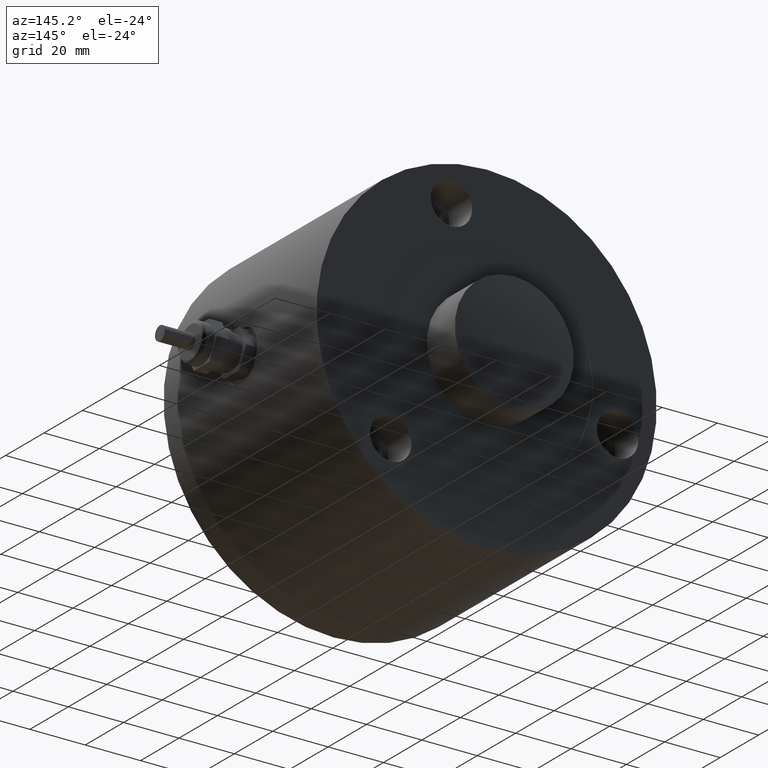
[diagram: clean part render]
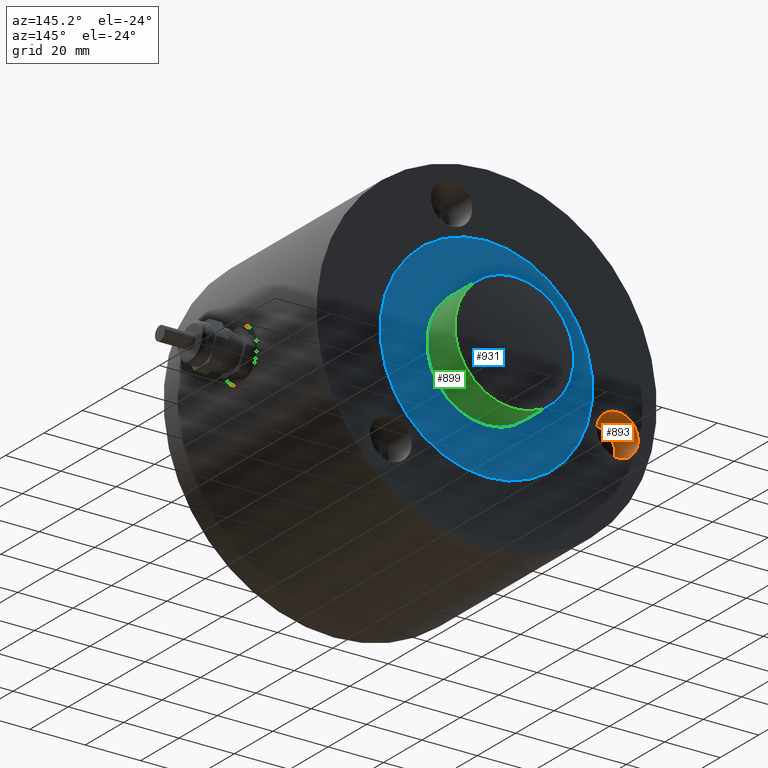
[diagram: same view with three faces highlighted in distinct colors, each labeled with its STEP entity id]
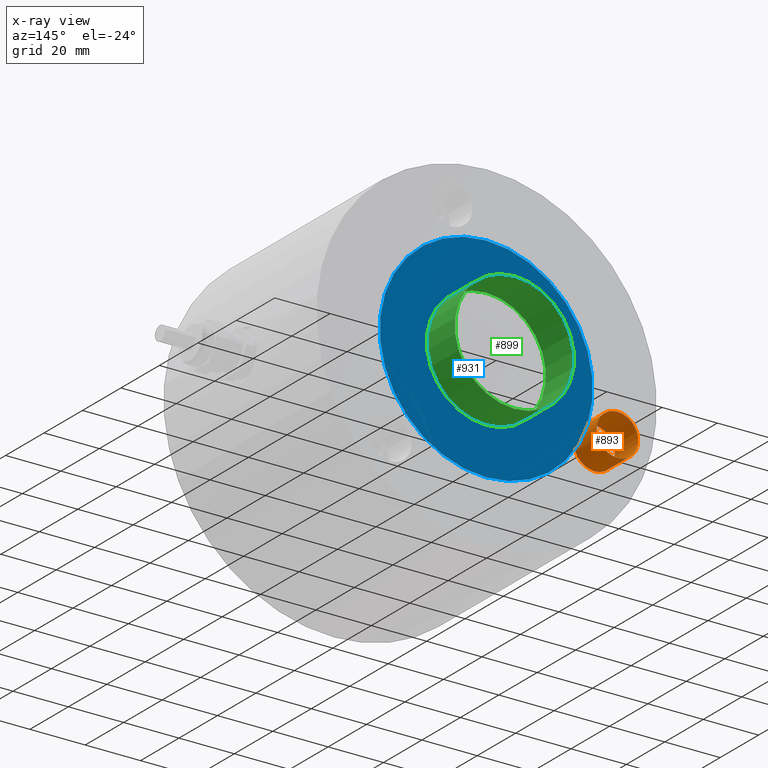
[diagram: x-ray of the same camera — body ghosted, the three highlighted faces saturated]
A machine part, auxiliary view with three faces highlighted in distinct colors.
The next image is the same camera in x-ray (body ghosted, the three faces saturated) — at least one of them is partly hidden behind the body in this view.
Their STEP definitions:

[orange] entity #893 — the highlighted cylindrical surface (bore or boss wall) has radius 7.5 mm, axis along (0, 1, 0).
#77=FACE_OUTER_BOUND('',#127,.T.);
#127=EDGE_LOOP('',(#624,#625,#626,#627,#628,#629));
#193=LINE('',#1451,#245);
#245=VECTOR('',#1117,7.5);
#306=CIRCLE('',#969,7.5);
#307=CIRCLE('',#970,7.5);
#308=CIRCLE('',#971,7.5);
#309=CIRCLE('',#972,7.5);
#383=VERTEX_POINT('',#1446);
#384=VERTEX_POINT('',#1447);
#385=VERTEX_POINT('',#1450);
#386=VERTEX_POINT('',#1452);
#486=EDGE_CURVE('',#383,#384,#306,.T.);
#487=EDGE_CURVE('',#384,#383,#307,.T.);
#488=EDGE_CURVE('',#384,#385,#193,.T.);
#489=EDGE_CURVE('',#385,#386,#308,.T.);
#490=EDGE_CURVE('',#386,#385,#309,.T.);
#624=ORIENTED_EDGE('',*,*,#486,.F.);
#625=ORIENTED_EDGE('',*,*,#487,.F.);
#626=ORIENTED_EDGE('',*,*,#488,.T.);
#627=ORIENTED_EDGE('',*,*,#489,.T.);
#628=ORIENTED_EDGE('',*,*,#490,.T.);
#629=ORIENTED_EDGE('',*,*,#488,.F.);
#877=CYLINDRICAL_SURFACE('',#968,7.5);
#893=ADVANCED_FACE('',(#77),#877,.F.);
#968=AXIS2_PLACEMENT_3D('',#1445,#1111,#1112);
#969=AXIS2_PLACEMENT_3D('',#1448,#1113,#1114);
#970=AXIS2_PLACEMENT_3D('',#1449,#1115,#1116);
#971=AXIS2_PLACEMENT_3D('',#1453,#1118,#1119);
#972=AXIS2_PLACEMENT_3D('',#1454,#1120,#1121);
#1111=DIRECTION('center_axis',(0.,1.,0.));
#1112=DIRECTION('ref_axis',(0.,0.,1.));
#1113=DIRECTION('center_axis',(0.,1.,0.));
#1114=DIRECTION('ref_axis',(0.,0.,1.));
#1115=DIRECTION('center_axis',(0.,1.,0.));
#1116=DIRECTION('ref_axis',(0.,0.,1.));
#1117=DIRECTION('',(0.,1.,0.));
#1118=DIRECTION('center_axis',(0.,1.,0.));
#1119=DIRECTION('ref_axis',(0.,0.,1.));
#1120=DIRECTION('center_axis',(0.,1.,0.));
#1121=DIRECTION('ref_axis',(0.,0.,1.));
#1445=CARTESIAN_POINT('Origin',(-47.3303654881639,68.,-12.6821332100216));
#1446=CARTESIAN_POINT('',(-47.3303654881639,68.,-5.18213321002158));
#1447=CARTESIAN_POINT('',(-47.3303654881639,68.,-20.1821332100216));
#1448=CARTESIAN_POINT('Origin',(-47.3303654881639,68.,-12.6821332100216));
#1449=CARTESIAN_POINT('Origin',(-47.3303654881639,68.,-12.6821332100216));
#1450=CARTESIAN_POINT('',(-47.3303654881639,80.,-20.1821332100216));
#1451=CARTESIAN_POINT('',(-47.3303654881639,68.,-20.1821332100216));
#1452=CARTESIAN_POINT('',(-47.3303654881639,80.,-5.18213321002158));
#1453=CARTESIAN_POINT('Origin',(-47.3303654881639,80.,-12.6821332100216));
#1454=CARTESIAN_POINT('Origin',(-47.3303654881639,80.,-12.6821332100216));

[blue] entity #931 — the highlighted planar face has unit normal (0, 1, 0).
#37=PLANE('',#1066);
#57=FACE_BOUND('',#174,.T.);
#115=FACE_OUTER_BOUND('',#173,.T.);
#173=EDGE_LOOP('',(#830,#831));
#174=EDGE_LOOP('',(#832,#833));
#312=CIRCLE('',#976,38.5);
#313=CIRCLE('',#977,38.5);
#331=CIRCLE('',#1000,21.5);
#332=CIRCLE('',#1001,21.5);
#389=VERTEX_POINT('',#1460);
#390=VERTEX_POINT('',#1462);
#412=VERTEX_POINT('',#1583);
#413=VERTEX_POINT('',#1584);
#494=EDGE_CURVE('',#389,#390,#312,.T.);
#495=EDGE_CURVE('',#390,#389,#313,.T.);
#522=EDGE_CURVE('',#412,#413,#331,.T.);
#523=EDGE_CURVE('',#413,#412,#332,.T.);
#830=ORIENTED_EDGE('',*,*,#495,.F.);
#831=ORIENTED_EDGE('',*,*,#494,.F.);
#832=ORIENTED_EDGE('',*,*,#522,.T.);
#833=ORIENTED_EDGE('',*,*,#523,.T.);
#931=ADVANCED_FACE('',(#115,#57),#37,.T.);
#976=AXIS2_PLACEMENT_3D('',#1463,#1129,#1130);
#977=AXIS2_PLACEMENT_3D('',#1464,#1131,#1132);
#1000=AXIS2_PLACEMENT_3D('',#1585,#1180,#1181);
#1001=AXIS2_PLACEMENT_3D('',#1586,#1182,#1183);
#1066=AXIS2_PLACEMENT_3D('',#1777,#1356,#1357);
#1129=DIRECTION('center_axis',(0.,-1.,0.));
#1130=DIRECTION('ref_axis',(0.,0.,-1.));
#1131=DIRECTION('center_axis',(0.,-1.,0.));
#1132=DIRECTION('ref_axis',(0.,0.,-1.));
#1180=DIRECTION('center_axis',(0.,-1.,0.));
#1181=DIRECTION('ref_axis',(0.,0.,-1.));
#1182=DIRECTION('center_axis',(0.,-1.,0.));
#1183=DIRECTION('ref_axis',(0.,0.,-1.));
#1356=DIRECTION('center_axis',(0.,1.,0.));
#1357=DIRECTION('ref_axis',(0.,0.,1.));
#1460=CARTESIAN_POINT('',(-4.71489017671731E-15,79.8,38.5));
#1462=CARTESIAN_POINT('',(0.,79.8,-38.5));
#1463=CARTESIAN_POINT('Origin',(0.,79.8,0.));
#1464=CARTESIAN_POINT('Origin',(0.,79.8,0.));
#1583=CARTESIAN_POINT('',(0.,79.8,-21.5));
#1584=CARTESIAN_POINT('',(-2.63299061816681E-15,79.8,21.5));
#1585=CARTESIAN_POINT('Origin',(0.,79.8,0.));
#1586=CARTESIAN_POINT('Origin',(0.,79.8,0.));
#1777=CARTESIAN_POINT('Origin',(38.5,79.8,0.));

[green] entity #899 — the highlighted cylindrical surface (bore or boss wall) has radius 21.5 mm, axis along (0, -1, 0).
#83=FACE_OUTER_BOUND('',#133,.T.);
#133=EDGE_LOOP('',(#667,#668,#669,#670,#671,#672));
#198=LINE('',#1588,#250);
#250=VECTOR('',#1184,21.5);
#331=CIRCLE('',#1000,21.5);
#332=CIRCLE('',#1001,21.5);
#333=CIRCLE('',#1002,21.5);
#334=CIRCLE('',#1003,21.5);
#412=VERTEX_POINT('',#1583);
#413=VERTEX_POINT('',#1584);
#414=VERTEX_POINT('',#1587);
#415=VERTEX_POINT('',#1589);
#522=EDGE_CURVE('',#412,#413,#331,.T.);
#523=EDGE_CURVE('',#413,#412,#332,.T.);
#524=EDGE_CURVE('',#413,#414,#198,.T.);
#525=EDGE_CURVE('',#414,#415,#333,.T.);
#526=EDGE_CURVE('',#415,#414,#334,.T.);
#667=ORIENTED_EDGE('',*,*,#522,.F.);
#668=ORIENTED_EDGE('',*,*,#523,.F.);
#669=ORIENTED_EDGE('',*,*,#524,.T.);
#670=ORIENTED_EDGE('',*,*,#525,.T.);
#671=ORIENTED_EDGE('',*,*,#526,.T.);
#672=ORIENTED_EDGE('',*,*,#524,.F.);
#882=CYLINDRICAL_SURFACE('',#999,21.5);
#899=ADVANCED_FACE('',(#83),#882,.T.);
#999=AXIS2_PLACEMENT_3D('',#1582,#1178,#1179);
#1000=AXIS2_PLACEMENT_3D('',#1585,#1180,#1181);
#1001=AXIS2_PLACEMENT_3D('',#1586,#1182,#1183);
#1002=AXIS2_PLACEMENT_3D('',#1590,#1185,#1186);
#1003=AXIS2_PLACEMENT_3D('',#1591,#1187,#1188);
#1178=DIRECTION('center_axis',(0.,-1.,0.));
#1179=DIRECTION('ref_axis',(0.,0.,-1.));
#1180=DIRECTION('center_axis',(0.,-1.,0.));
#1181=DIRECTION('ref_axis',(0.,0.,-1.));
#1182=DIRECTION('center_axis',(0.,-1.,0.));
#1183=DIRECTION('ref_axis',(0.,0.,-1.));
#1184=DIRECTION('',(0.,1.,0.));
#1185=DIRECTION('center_axis',(0.,-1.,0.));
#1186=DIRECTION('ref_axis',(0.,0.,-1.));
#1187=DIRECTION('center_axis',(0.,-1.,0.));
#1188=DIRECTION('ref_axis',(0.,0.,-1.));
#1582=CARTESIAN_POINT('Origin',(0.,0.,0.));
#1583=CARTESIAN_POINT('',(0.,79.8,-21.5));
#1584=CARTESIAN_POINT('',(-2.63299061816681E-15,79.8,21.5));
#1585=CARTESIAN_POINT('Origin',(0.,79.8,0.));
#1586=CARTESIAN_POINT('Origin',(0.,79.8,0.));
#1587=CARTESIAN_POINT('',(-2.63299061816681E-15,94.39,21.5));
#1588=CARTESIAN_POINT('',(-2.63299061816681E-15,0.,21.5));
#1589=CARTESIAN_POINT('',(0.,94.39,-21.4999999999999));
#1590=CARTESIAN_POINT('Origin',(0.,94.39,0.));
#1591=CARTESIAN_POINT('Origin',(0.,94.39,0.));